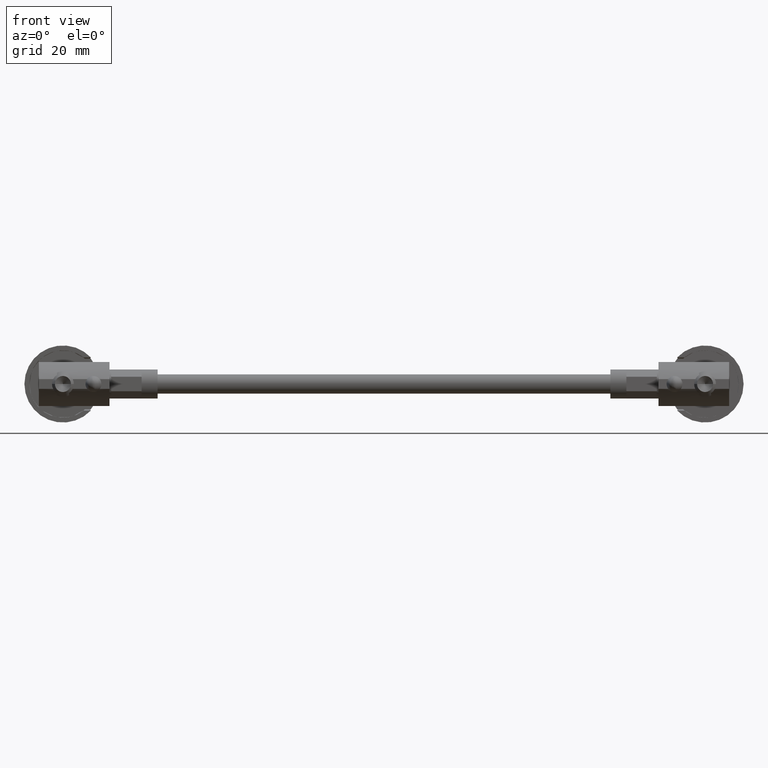
[diagram: clean part render]
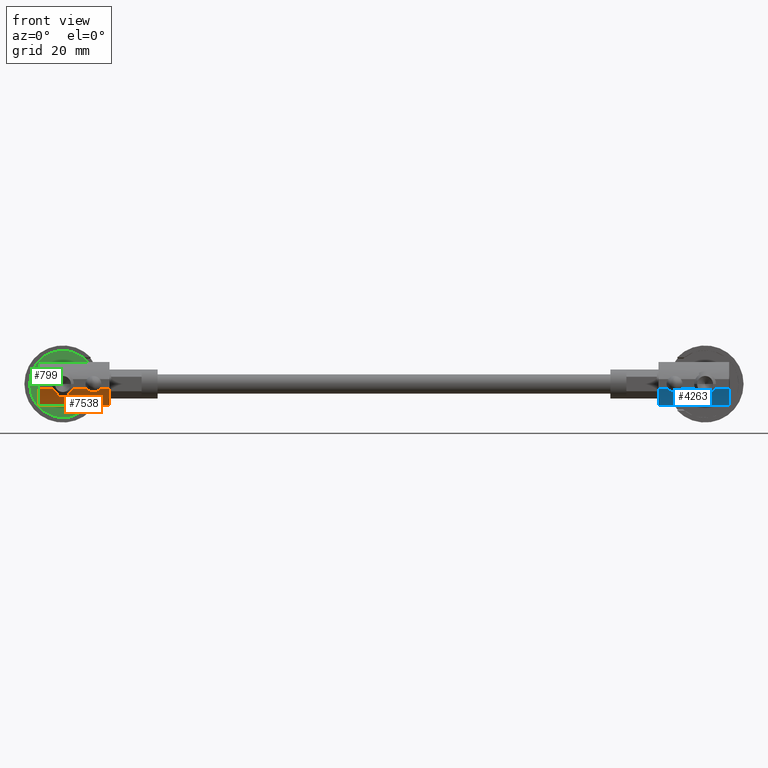
[diagram: same view with three faces highlighted in distinct colors, each labeled with its STEP entity id]
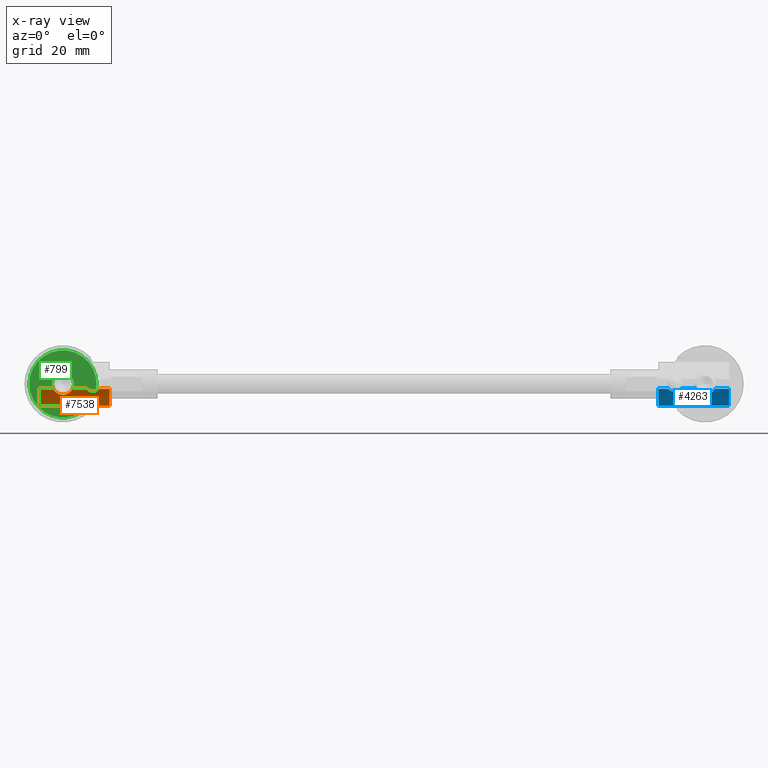
[diagram: x-ray of the same camera — body ghosted, the three highlighted faces saturated]
A machine part, front view with three faces highlighted in distinct colors.
The next image is the same camera in x-ray (body ghosted, the three faces saturated) — at least one of them is partly hidden behind the body in this view.
Their STEP definitions:

[orange] entity #7538 — the highlighted cylindrical surface (partial cylindrical patch) has radius 15 mm, axis along (1, 0, 0).
#20 = CARTESIAN_POINT ( 'NONE',  ( 10.31507470767070000, 6.395863166327655100, 2.334512633789148000 ) ) ;
#29 = CARTESIAN_POINT ( 'NONE',  ( -1.607021485560720800, 5.846392627918894500, 3.000552075843592600 ) ) ;
#82 = CARTESIAN_POINT ( 'NONE',  ( -1.316813023630920600, 5.723978642615317200, 3.138763176109192100 ) ) ;
#98 = CARTESIAN_POINT ( 'NONE',  ( 7.979895530079649500, 6.658593893730958300, 1.986763792833466300 ) ) ;
#108 = CARTESIAN_POINT ( 'NONE',  ( 11.24550390611286600, 6.800000000000000700, 1.789753087368402200 ) ) ;
#118 = CARTESIAN_POINT ( 'NONE',  ( 14.50000000000000000, -5.443699999999999800, -6.875800000000000800 ) ) ;
#195 = DIRECTION ( 'NONE',  ( 0.0000000000000000000, 0.0000000000000000000, -1.000000000000000000 ) ) ;
#290 = ORIENTED_EDGE ( 'NONE', *, *, #1976, .F. ) ;
#311 = DIRECTION ( 'NONE',  ( 1.000000000000000000, 0.0000000000000000000, 0.0000000000000000000 ) ) ;
#379 = AXIS2_PLACEMENT_3D ( 'NONE', #2748, #311, #911 ) ;
#529 = CARTESIAN_POINT ( 'NONE',  ( 2.010954284642405600, 6.064311396275236600, 2.745970588052841800 ) ) ;
#542 = VERTEX_POINT ( 'NONE', #2135 ) ;
#558 = CARTESIAN_POINT ( 'NONE',  ( 3.051220319344246900, 6.999999999999999100, 1.500018187496669800 ) ) ;
#616 = LINE ( 'NONE', #8045, #5617 ) ;
#623 = VERTEX_POINT ( 'NONE', #2326 ) ;
#684 = CARTESIAN_POINT ( 'NONE',  ( -2.362206040744368400, 6.297498275329335400, 2.463607501554073500 ) ) ;
#738 = CARTESIAN_POINT ( 'NONE',  ( 11.33694187479972000, 6.863115769539110300, 1.700575796580983300 ) ) ;
#846 = ORIENTED_EDGE ( 'NONE', *, *, #1033, .T. ) ;
#911 = DIRECTION ( 'NONE',  ( 0.0000000000000000000, 0.0000000000000000000, -1.000000000000000000 ) ) ;
#1013 = CYLINDRICAL_SURFACE ( 'NONE', #5288, 15.00000000000000000 ) ;
#1032 = CARTESIAN_POINT ( 'NONE',  ( 14.50000000000000000, 6.999999999999998200, 1.500018187496670700 ) ) ;
#1033 = EDGE_CURVE ( 'NONE', #3902, #4304, #4318, .T. ) ;
#1105 = CARTESIAN_POINT ( 'NONE',  ( 2.134438245254902400, 6.143306821718653100, 2.650896903671186200 ) ) ;
#1128 = CIRCLE ( 'NONE', #7317, 15.00000000000000000 ) ;
#1144 = DIRECTION ( 'NONE',  ( -1.000000000000000000, -0.0000000000000000000, -0.0000000000000000000 ) ) ;
#1158 = CARTESIAN_POINT ( 'NONE',  ( 1.751295241845146800, 5.917892201179617100, 2.918433926143174000 ) ) ;
#1196 = CARTESIAN_POINT ( 'NONE',  ( -3.051220319344246900, 6.999999999999999100, 1.500018187496669800 ) ) ;
#1236 = EDGE_CURVE ( 'NONE', #4304, #2826, #616, .T. ) ;
#1273 = CARTESIAN_POINT ( 'NONE',  ( -2.920397547576924200, 6.820882467153701600, 1.766127693885753300 ) ) ;
#1292 = CARTESIAN_POINT ( 'NONE',  ( 14.50000000000000000, 6.999999999999998200, 1.500018187496670700 ) ) ;
#1298 = CARTESIAN_POINT ( 'NONE',  ( -1.164973858814094100, 5.669884420373997500, 3.198559969211224100 ) ) ;
#1325 = CARTESIAN_POINT ( 'NONE',  ( 11.48996116474148700, 6.999999999999999100, 1.500018187496662000 ) ) ;
#1339 = CARTESIAN_POINT ( 'NONE',  ( 8.684758747591201800, 6.395931791068936600, 2.334422127100954200 ) ) ;
#1420 = CARTESIAN_POINT ( 'NONE',  ( 7.581050162485785100, 6.930338883221342200, 1.603511603835697100 ) ) ;
#1685 = B_SPLINE_CURVE_WITH_KNOTS ( 'NONE', 3,
 ( #6694, #6168, #7321, #3631, #4211, #1105, #529, #1158, #6776, #1788, #2402, #5586, #8082, #3150, #5662, #5020 ),
 .UNSPECIFIED., .F., .F.,
 ( 4, 2, 2, 2, 2, 2, 2, 4 ),
 ( 1.167721476617542300E-018, 0.001021559378302820500, 0.001532339067454229700, 0.002043118756605639300, 0.002553898445757048200, 0.003064678134908456700, 0.003575457824059866100, 0.004086237513211274200 ),
 .UNSPECIFIED. ) ;
#1730 = VERTEX_POINT ( 'NONE', #1196 ) ;
#1779 = CARTESIAN_POINT ( 'NONE',  ( 11.24550390611286600, 6.800000000000000700, 1.789753087368402200 ) ) ;
#1788 = CARTESIAN_POINT ( 'NONE',  ( 1.324111415067347900, 5.726728191862686200, 3.135701256862803100 ) ) ;
#1799 = VERTEX_POINT ( 'NONE', #4396 ) ;
#1816 = CARTESIAN_POINT ( 'NONE',  ( 11.24550390611286600, 6.800000000000000700, 1.789753087368402200 ) ) ;
#1864 = EDGE_CURVE ( 'NONE', #7687, #5393, #6182, .T. ) ;
#1912 = CARTESIAN_POINT ( 'NONE',  ( 10.75569273155184300, 6.535832561236101200, 2.152003218424707300 ) ) ;
#1976 = EDGE_CURVE ( 'NONE', #623, #7516, #3679, .T. ) ;
#1991 = CARTESIAN_POINT ( 'NONE',  ( 8.243631629963685400, 6.536064880933757600, 2.151701751305651100 ) ) ;
#2068 = CARTESIAN_POINT ( 'NONE',  ( 7.663348190086028700, 6.862915549994177400, 1.700858690011747500 ) ) ;
#2135 = CARTESIAN_POINT ( 'NONE',  ( -7.499999999999998200, 6.999999999999999100, 1.500018187496669800 ) ) ;
#2144 = ORIENTED_EDGE ( 'NONE', *, *, #7664, .F. ) ;
#2195 = VECTOR ( 'NONE', #3810, 1000.000000000000000 ) ;
#2308 = VERTEX_POINT ( 'NONE', #6753 ) ;
#2326 = CARTESIAN_POINT ( 'NONE',  ( 14.50000000000000000, 0.7049551724137919100, 6.806087281027759900 ) ) ;
#2397 = ORIENTED_EDGE ( 'NONE', *, *, #6418, .T. ) ;
#2402 = CARTESIAN_POINT ( 'NONE',  ( 1.169375551033407600, 5.671374201658086800, 3.196916602915210500 ) ) ;
#2436 = CARTESIAN_POINT ( 'NONE',  ( 11.13934008048986100, 6.726719593100758000, 1.893292158551295400 ) ) ;
#2444 = DIRECTION ( 'NONE',  ( 1.000000000000000000, 0.0000000000000000000, 0.0000000000000000000 ) ) ;
#2544 = CARTESIAN_POINT ( 'NONE',  ( -0.1741699072580615600, 5.483693758806353500, 3.400000000000001200 ) ) ;
#2575 = CARTESIAN_POINT ( 'NONE',  ( 11.41850533779835400, 6.929902835229791300, 1.604159427161251200 ) ) ;
#2649 = CARTESIAN_POINT ( 'NONE',  ( 7.754496093887132300, 6.799999999999998000, 1.789753087368400400 ) ) ;
#2748 = CARTESIAN_POINT ( 'NONE',  ( 14.50000000000000000, -5.443699999999999800, -6.875800000000000800 ) ) ;
#2826 = VERTEX_POINT ( 'NONE', #558 ) ;
#3035 = ORIENTED_EDGE ( 'NONE', *, *, #6848, .T. ) ;
#3150 = CARTESIAN_POINT ( 'NONE',  ( 0.3490359650921224200, 5.496551252033402300, 3.386372228750627900 ) ) ;
#3176 = CARTESIAN_POINT ( 'NONE',  ( 10.61512680406582000, 6.483149617983648300, 2.221198019764642600 ) ) ;
#3319 = DIRECTION ( 'NONE',  ( -1.000000000000000000, -0.0000000000000000000, -0.0000000000000000000 ) ) ;
#3631 = CARTESIAN_POINT ( 'NONE',  ( 2.467313702026287200, 6.389121484092967800, 2.343959336496202800 ) ) ;
#3679 = LINE ( 'NONE', #7158, #3869 ) ;
#3681 = CARTESIAN_POINT ( 'NONE',  ( 9.332729651075858600, 6.304573663101223200, 2.450403189786275200 ) ) ;
#3733 = CARTESIAN_POINT ( 'NONE',  ( -0.6799570239546040000, 5.543932167809434700, 3.335623040077529700 ) ) ;
#3740 = LINE ( 'NONE', #1292, #2195 ) ;
#3745 = ORIENTED_EDGE ( 'NONE', *, *, #1236, .T. ) ;
#3750 = CARTESIAN_POINT ( 'NONE',  ( 8.844496666770894000, 6.361612123995626300, 2.378169649339177700 ) ) ;
#3781 = CARTESIAN_POINT ( 'NONE',  ( 11.01825843812406600, 6.657655451861185900, 1.988038195952421600 ) ) ;
#3793 = CARTESIAN_POINT ( 'NONE',  ( -0.8455580180871210500, 5.579460762151626300, 3.297420447320796600 ) ) ;
#3810 = DIRECTION ( 'NONE',  ( -1.000000000000000000, -0.0000000000000000000, -0.0000000000000000000 ) ) ;
#3869 = VECTOR ( 'NONE', #3319, 1000.000000000000000 ) ;
#3895 = CARTESIAN_POINT ( 'NONE',  ( 7.754496093887132300, 6.799999999999998000, 1.789753087368400400 ) ) ;
#3902 = VERTEX_POINT ( 'NONE', #7955 ) ;
#3933 = FACE_OUTER_BOUND ( 'NONE', #6563, .T. ) ;
#4126 = CARTESIAN_POINT ( 'NONE',  ( 7.510038835258534100, 7.000000000000000900, 1.500018187496667800 ) ) ;
#4127 = B_SPLINE_CURVE_WITH_KNOTS ( 'NONE', 3,
 ( #1816, #2436, #3781, #1912, #3176, #20, #4977, #7544, #5609, #3681, #4378, #3750, #1339, #5691, #1991, #98, #5104, #2649 ),
 .UNSPECIFIED., .F., .F.,
 ( 4, 2, 2, 2, 2, 2, 2, 2, 4 ),
 ( 0.0004273609904412113100, 0.0009235474031409035100, 0.001419733815840595700, 0.001915920228540287800, 0.002412106641239979800, 0.002908293053939671900, 0.003404479466639364100, 0.003900665879339056200, 0.004396852292038748800 ),
 .UNSPECIFIED. ) ;
#4191 = ORIENTED_EDGE ( 'NONE', *, *, #6008, .T. ) ;
#4211 = CARTESIAN_POINT ( 'NONE',  ( 2.362363255943760600, 6.305632628623433400, 2.449963441291950900 ) ) ;
#4262 = ORIENTED_EDGE ( 'NONE', *, *, #1864, .T. ) ;
#4304 = VERTEX_POINT ( 'NONE', #4126 ) ;
#4308 = DIRECTION ( 'NONE',  ( 0.0000000000000000000, 0.0000000000000000000, -1.000000000000000000 ) ) ;
#4318 = B_SPLINE_CURVE_WITH_KNOTS ( 'NONE', 3,
 ( #3895, #2068, #1420, #5778 ),
 .UNSPECIFIED., .F., .F.,
 ( 4, 4 ),
 ( 0.004396852292038748800, 0.004821512991183025400 ),
 .UNSPECIFIED. ) ;
#4360 = CARTESIAN_POINT ( 'NONE',  ( 0.0000000000000000000, 5.483693758806351700, 3.399999999999999900 ) ) ;
#4378 = CARTESIAN_POINT ( 'NONE',  ( 9.168291755623329200, 6.316159117350493600, 2.435862695561803000 ) ) ;
#4396 = CARTESIAN_POINT ( 'NONE',  ( 14.50000000000000000, 6.999999999999999100, 1.500018187496669800 ) ) ;
#4439 = CARTESIAN_POINT ( 'NONE',  ( -1.746322401378547900, 5.915313732620152400, 2.921422963475985400 ) ) ;
#4532 = DIRECTION ( 'NONE',  ( 1.000000000000000000, 0.0000000000000000000, 0.0000000000000000000 ) ) ;
#4658 = ORIENTED_EDGE ( 'NONE', *, *, #6949, .T. ) ;
#4887 = DIRECTION ( 'NONE',  ( -1.000000000000000000, -0.0000000000000000000, -0.0000000000000000000 ) ) ;
#4977 = CARTESIAN_POINT ( 'NONE',  ( 10.15558926315721200, 6.361659857075290200, 2.378108390980962800 ) ) ;
#5005 = CARTESIAN_POINT ( 'NONE',  ( -2.136737156247428400, 6.134799714670633000, 2.663037846039189500 ) ) ;
#5013 = ORIENTED_EDGE ( 'NONE', *, *, #7935, .T. ) ;
#5020 = CARTESIAN_POINT ( 'NONE',  ( 0.0000000000000000000, 5.483693758806351700, 3.399999999999999900 ) ) ;
#5065 = CARTESIAN_POINT ( 'NONE',  ( -2.755886603249406700, 6.641801724989414300, 2.013571039390748200 ) ) ;
#5104 = CARTESIAN_POINT ( 'NONE',  ( 7.860996063164486200, 6.726487567327176000, 1.893619991516537300 ) ) ;
#5269 = EDGE_CURVE ( 'NONE', #1730, #542, #7282, .T. ) ;
#5288 = AXIS2_PLACEMENT_3D ( 'NONE', #118, #4532, #195 ) ;
#5393 = VERTEX_POINT ( 'NONE', #1779 ) ;
#5539 = CARTESIAN_POINT ( 'NONE',  ( -7.499999999999998200, -5.443699999999999800, -6.875800000000000800 ) ) ;
#5586 = CARTESIAN_POINT ( 'NONE',  ( 0.8514621006432554500, 5.580896223254452300, 3.295865172684979700 ) ) ;
#5609 = CARTESIAN_POINT ( 'NONE',  ( 9.666809983564206700, 6.304552196189781000, 2.450430231718470500 ) ) ;
#5617 = VECTOR ( 'NONE', #4887, 1000.000000000000000 ) ;
#5621 = CARTESIAN_POINT ( 'NONE',  ( -0.3448736001029518700, 5.496234628222634200, 3.386707076183780100 ) ) ;
#5662 = CARTESIAN_POINT ( 'NONE',  ( 0.1745052210684714100, 5.483693758806353500, 3.400000000000001200 ) ) ;
#5691 = CARTESIAN_POINT ( 'NONE',  ( 8.385803861589817400, 6.482858758670655400, 2.221577026077710600 ) ) ;
#5778 = CARTESIAN_POINT ( 'NONE',  ( 7.510038835258534100, 7.000000000000000900, 1.500018187496667800 ) ) ;
#5932 = CARTESIAN_POINT ( 'NONE',  ( 11.48996116474148700, 6.999999999999999100, 1.500018187496662000 ) ) ;
#6008 = EDGE_CURVE ( 'NONE', #1799, #7687, #3740, .T. ) ;
#6168 = CARTESIAN_POINT ( 'NONE',  ( 2.920227549515222300, 6.820649712313018800, 1.766473490719710200 ) ) ;
#6182 = B_SPLINE_CURVE_WITH_KNOTS ( 'NONE', 3,
 ( #1325, #2575, #738, #108 ),
 .UNSPECIFIED., .F., .F.,
 ( 4, 4 ),
 ( 2.335442953235084600E-018, 0.0004273609904412113100 ),
 .UNSPECIFIED. ) ;
#6286 = CARTESIAN_POINT ( 'NONE',  ( -3.051220319344246900, 6.999999999999999100, 1.500018187496669800 ) ) ;
#6418 = EDGE_CURVE ( 'NONE', #542, #7516, #1128, .T. ) ;
#6563 = EDGE_LOOP ( 'NONE', ( #290, #2144, #4191, #4262, #4658, #846, #3745, #3035, #5013, #7342, #2397 ) ) ;
#6694 = CARTESIAN_POINT ( 'NONE',  ( 3.051220319344246900, 6.999999999999999100, 1.500018187496669800 ) ) ;
#6753 = CARTESIAN_POINT ( 'NONE',  ( 0.0000000000000000000, 5.483693758806351700, 3.399999999999999900 ) ) ;
#6776 = CARTESIAN_POINT ( 'NONE',  ( 1.614340810552521000, 5.849826029771662700, 2.996630968135256100 ) ) ;
#6848 = EDGE_CURVE ( 'NONE', #2826, #2308, #1685, .T. ) ;
#6850 = CARTESIAN_POINT ( 'NONE',  ( -7.499999999999998200, 0.7049551724137928000, 6.806087281027761700 ) ) ;
#6949 = EDGE_CURVE ( 'NONE', #5393, #3902, #4127, .T. ) ;
#7158 = CARTESIAN_POINT ( 'NONE',  ( 14.50000000000000000, 0.7049551724137930200, 6.806087281027761700 ) ) ;
#7259 = CIRCLE ( 'NONE', #379, 15.00000000000000000 ) ;
#7282 = LINE ( 'NONE', #1032, #7987 ) ;
#7317 = AXIS2_PLACEMENT_3D ( 'NONE', #5539, #2444, #4308 ) ;
#7321 = CARTESIAN_POINT ( 'NONE',  ( 2.758060344169862800, 6.644330433029988800, 2.010032895087823200 ) ) ;
#7342 = ORIENTED_EDGE ( 'NONE', *, *, #5269, .T. ) ;
#7379 = B_SPLINE_CURVE_WITH_KNOTS ( 'NONE', 3,
 ( #4360, #2544, #5621, #3733, #3793, #1298, #82, #29, #4439, #5005, #684, #5065, #1273, #6286 ),
 .UNSPECIFIED., .F., .F.,
 ( 4, 2, 2, 2, 2, 2, 4 ),
 ( 0.004086237513211274200, 0.004596035733253615900, 0.005105833953295957500, 0.005615632173338299200, 0.006125430393380641700, 0.007145026833465326800, 0.008164623273550011800 ),
 .UNSPECIFIED. ) ;
#7516 = VERTEX_POINT ( 'NONE', #6850 ) ;
#7538 = ADVANCED_FACE ( 'NONE', ( #3933 ), #1013, .T. ) ;
#7544 = CARTESIAN_POINT ( 'NONE',  ( 9.833117444805605300, 6.316321429444535300, 2.435657342581658600 ) ) ;
#7664 = EDGE_CURVE ( 'NONE', #1799, #623, #7259, .T. ) ;
#7687 = VERTEX_POINT ( 'NONE', #5932 ) ;
#7935 = EDGE_CURVE ( 'NONE', #2308, #1730, #7379, .T. ) ;
#7955 = CARTESIAN_POINT ( 'NONE',  ( 7.754496093887132300, 6.799999999999998000, 1.789753087368400400 ) ) ;
#7987 = VECTOR ( 'NONE', #1144, 1000.000000000000000 ) ;
#8045 = CARTESIAN_POINT ( 'NONE',  ( 14.50000000000000000, 6.999999999999998200, 1.500018187496670700 ) ) ;
#8082 = CARTESIAN_POINT ( 'NONE',  ( 0.6876272359636798100, 5.545309666911665900, 3.334143332393229500 ) ) ;

[blue] entity #4263 — the highlighted cylindrical surface (partial cylindrical patch) has radius 15 mm, axis along (-1, 0, 0).
#15 = CARTESIAN_POINT ( 'NONE',  ( 7.981741561875784500, 6.657655451861165500, -1.988038195952303500 ) ) ;
#22 = DIRECTION ( 'NONE',  ( 1.000000000000000000, 0.0000000000000000000, 0.0000000000000000000 ) ) ;
#36 = CARTESIAN_POINT ( 'NONE',  ( 10.61419613841030300, 6.482858758670595000, -2.221577026077642600 ) ) ;
#39 = EDGE_CURVE ( 'NONE', #8052, #6148, #2094, .T. ) ;
#89 = CARTESIAN_POINT ( 'NONE',  ( 11.13900393683566600, 6.726487567327162700, -1.893619991516401800 ) ) ;
#155 = EDGE_CURVE ( 'NONE', #2815, #4497, #5777, .T. ) ;
#179 = EDGE_CURVE ( 'NONE', #3059, #7963, #7800, .T. ) ;
#206 = DIRECTION ( 'NONE',  ( 0.0000000000000000000, 0.0000000000000000000, -1.000000000000000000 ) ) ;
#591 = CARTESIAN_POINT ( 'NONE',  ( 10.31524125240889600, 6.395931791068859300, -2.334422127100910200 ) ) ;
#614 = CARTESIAN_POINT ( 'NONE',  ( 8.384873195934057200, 6.483149617983587900, -2.221198019764574200 ) ) ;
#670 = CARTESIAN_POINT ( 'NONE',  ( 14.50000000000000000, 6.999999999999963600, -1.500018187496564800 ) ) ;
#756 = EDGE_CURVE ( 'NONE', #4497, #3456, #4764, .T. ) ;
#816 = EDGE_CURVE ( 'NONE', #1399, #1342, #3299, .T. ) ;
#873 = CARTESIAN_POINT ( 'NONE',  ( 11.24550390611302800, 6.799999999999998900, -1.789753087368243900 ) ) ;
#912 = CARTESIAN_POINT ( 'NONE',  ( -1.322385126009099100, 5.726068702545310500, -3.136436932042862200 ) ) ;
#995 = CARTESIAN_POINT ( 'NONE',  ( 3.051220319344285500, 7.000000000000000000, -1.500018187496589400 ) ) ;
#1030 = CARTESIAN_POINT ( 'NONE',  ( -2.361747757776193600, 6.305156363088985700, -2.450564383951142800 ) ) ;
#1130 = CARTESIAN_POINT ( 'NONE',  ( 14.50000000000000000, 7.000000000000000000, -1.500018187496670000 ) ) ;
#1342 = VERTEX_POINT ( 'NONE', #670 ) ;
#1399 = VERTEX_POINT ( 'NONE', #3914 ) ;
#1555 = EDGE_CURVE ( 'NONE', #2777, #2815, #7717, .T. ) ;
#1601 = DIRECTION ( 'NONE',  ( 1.000000000000000000, 0.0000000000000000000, 0.0000000000000000000 ) ) ;
#1635 = LINE ( 'NONE', #2921, #7774 ) ;
#1641 = CARTESIAN_POINT ( 'NONE',  ( -2.920133508614255500, 6.820520955110008100, -1.766664781405574300 ) ) ;
#1723 = CARTESIAN_POINT ( 'NONE',  ( 7.510038835258517200, 6.999999999999955600, -1.500018187496651600 ) ) ;
#1756 = ORIENTED_EDGE ( 'NONE', *, *, #2018, .F. ) ;
#1775 = CARTESIAN_POINT ( 'NONE',  ( 4.162715753765229800E-016, 5.483693758806227300, -3.399999999999999900 ) ) ;
#2018 = EDGE_CURVE ( 'NONE', #3059, #1399, #5055, .T. ) ;
#2094 = B_SPLINE_CURVE_WITH_KNOTS ( 'NONE', 3,
 ( #7191, #2941, #4115, #6627 ),
 .UNSPECIFIED., .F., .F.,
 ( 4, 4 ),
 ( 0.004396852292039006400, 0.004821512991183110400 ),
 .UNSPECIFIED. ) ;
#2148 = CARTESIAN_POINT ( 'NONE',  ( 11.02010446992050200, 6.658593893730931700, -1.986763792833344800 ) ) ;
#2241 = CARTESIAN_POINT ( 'NONE',  ( 14.50000000000000000, 6.999999999999926300, -1.500018187496620300 ) ) ;
#2255 = CARTESIAN_POINT ( 'NONE',  ( -0.6852513233344800200, 5.544847154999795100, -3.334640618405860100 ) ) ;
#2332 = VECTOR ( 'NONE', #5226, 1000.000000000000000 ) ;
#2362 = CARTESIAN_POINT ( 'NONE',  ( 1.166058897774382400, 5.670281299937545100, -3.198120717092838300 ) ) ;
#2441 = ORIENTED_EDGE ( 'NONE', *, *, #1555, .T. ) ;
#2446 = CARTESIAN_POINT ( 'NONE',  ( 2.137188902133242000, 6.135217317133829300, -2.662511356567832000 ) ) ;
#2453 = CARTESIAN_POINT ( 'NONE',  ( 9.333190016435775500, 6.304552196189680700, -2.450430231718449600 ) ) ;
#2460 = DIRECTION ( 'NONE',  ( 0.0000000000000000000, 0.0000000000000000000, -1.000000000000000000 ) ) ;
#2482 = DIRECTION ( 'NONE',  ( 1.000000000000000000, 0.0000000000000000000, 0.0000000000000000000 ) ) ;
#2570 = CARTESIAN_POINT ( 'NONE',  ( -7.499999999999998200, -5.443700000000060200, 6.875800000000070100 ) ) ;
#2623 = DIRECTION ( 'NONE',  ( 1.000000000000000000, 0.0000000000000000000, 0.0000000000000000000 ) ) ;
#2757 = ORIENTED_EDGE ( 'NONE', *, *, #816, .F. ) ;
#2777 = VERTEX_POINT ( 'NONE', #6786 ) ;
#2802 = CARTESIAN_POINT ( 'NONE',  ( -2.757828526219271200, 6.644076914382198500, -2.010383163261838300 ) ) ;
#2815 = VERTEX_POINT ( 'NONE', #1775 ) ;
#2921 = CARTESIAN_POINT ( 'NONE',  ( 14.50000000000000000, 6.999999999999926300, -1.500018187496620300 ) ) ;
#2941 = CARTESIAN_POINT ( 'NONE',  ( 11.33665180991408400, 6.862915549994154300, -1.700858690011618900 ) ) ;
#2967 = CARTESIAN_POINT ( 'NONE',  ( 2.757775895762653500, 6.643923121396136700, -2.010624257570764700 ) ) ;
#3000 = DIRECTION ( 'NONE',  ( 1.000000000000000000, 0.0000000000000000000, 0.0000000000000000000 ) ) ;
#3059 = VERTEX_POINT ( 'NONE', #3289 ) ;
#3087 = CARTESIAN_POINT ( 'NONE',  ( 7.754496093886972500, 6.799999999999998900, -1.789753087368244600 ) ) ;
#3094 = AXIS2_PLACEMENT_3D ( 'NONE', #7435, #22, #2460 ) ;
#3197 = VERTEX_POINT ( 'NONE', #5410 ) ;
#3289 = CARTESIAN_POINT ( 'NONE',  ( -7.499999999999998200, 0.7049551520261730900, -6.806087290189927900 ) ) ;
#3299 = CIRCLE ( 'NONE', #3094, 15.00000000000000000 ) ;
#3338 = ORIENTED_EDGE ( 'NONE', *, *, #4050, .T. ) ;
#3433 = CARTESIAN_POINT ( 'NONE',  ( -2.009970135479617300, 6.063703531404410500, -2.746697881997379300 ) ) ;
#3456 = VERTEX_POINT ( 'NONE', #7986 ) ;
#3593 = ORIENTED_EDGE ( 'NONE', *, *, #8061, .T. ) ;
#3606 = B_SPLINE_CURVE_WITH_KNOTS ( 'NONE', 3,
 ( #3087, #4320, #15, #4937, #614, #4344, #6213, #5015, #2453, #6877, #3701, #6366, #591, #36, #5154, #2148, #89, #4445 ),
 .UNSPECIFIED., .F., .F.,
 ( 4, 2, 2, 2, 2, 2, 2, 2, 4 ),
 ( 0.0004273609904409949500, 0.0009235474031407464100, 0.001419733815840497900, 0.001915920228540249200, 0.002412106641240001000, 0.002908293053939752100, 0.003404479466639503300, 0.003900665879339255300, 0.004396852292039006400 ),
 .UNSPECIFIED. ) ;
#3692 = CARTESIAN_POINT ( 'NONE',  ( 2.368055832518511900, 6.302154509627834900, -2.457691878665134500 ) ) ;
#3701 = CARTESIAN_POINT ( 'NONE',  ( 9.831708244376706300, 6.316159117350395900, -2.435862695561779900 ) ) ;
#3914 = CARTESIAN_POINT ( 'NONE',  ( 14.50000000000000000, 0.7049551520261730900, -6.806087290189927900 ) ) ;
#3925 = LINE ( 'NONE', #2241, #6202 ) ;
#3970 = VECTOR ( 'NONE', #2482, 1000.000000000000000 ) ;
#3993 = CARTESIAN_POINT ( 'NONE',  ( 14.50000000000000000, 0.7049551316385901400, -6.806087299352181000 ) ) ;
#4050 = EDGE_CURVE ( 'NONE', #3197, #8052, #3606, .T. ) ;
#4115 = CARTESIAN_POINT ( 'NONE',  ( 11.41894983751428700, 6.930338883221293300, -1.603511603835610100 ) ) ;
#4228 = CARTESIAN_POINT ( 'NONE',  ( 2.920230945849747100, 6.820654362444169100, -1.766466582160211900 ) ) ;
#4236 = CARTESIAN_POINT ( 'NONE',  ( 7.663058125200175000, 6.863115769539084500, -1.700575796580866500 ) ) ;
#4263 = ADVANCED_FACE ( 'NONE', ( #5139 ), #4940, .T. ) ;
#4320 = CARTESIAN_POINT ( 'NONE',  ( 7.860659919509979300, 6.726719593100745500, -1.893292158551160800 ) ) ;
#4344 = CARTESIAN_POINT ( 'NONE',  ( 8.684925292329204200, 6.395863166327576000, -2.334512633789103100 ) ) ;
#4445 = CARTESIAN_POINT ( 'NONE',  ( 11.24550390611302800, 6.799999999999998900, -1.789753087368243900 ) ) ;
#4497 = VERTEX_POINT ( 'NONE', #995 ) ;
#4680 = AXIS2_PLACEMENT_3D ( 'NONE', #7062, #2623, #206 ) ;
#4686 = CARTESIAN_POINT ( 'NONE',  ( -1.612941088814362300, 5.849160431501987400, -2.997392215607908500 ) ) ;
#4764 = LINE ( 'NONE', #1130, #3970 ) ;
#4774 = CARTESIAN_POINT ( 'NONE',  ( -3.051220319344268200, 6.999999999999960000, -1.500018187496625200 ) ) ;
#4828 = CARTESIAN_POINT ( 'NONE',  ( 7.754496093886972500, 6.799999999999998900, -1.789753087368244600 ) ) ;
#4847 = CARTESIAN_POINT ( 'NONE',  ( 4.162715753765229800E-016, 5.483693758806227300, -3.399999999999999900 ) ) ;
#4884 = CARTESIAN_POINT ( 'NONE',  ( 7.581494662201585300, 6.929902835229729200, -1.604159427161177000 ) ) ;
#4885 = EDGE_LOOP ( 'NONE', ( #3593, #2441, #4947, #5754, #5460, #3338, #6673, #5996, #2757, #1756, #6208 ) ) ;
#4927 = CARTESIAN_POINT ( 'NONE',  ( 1.320564128564439200, 5.725367342865680200, -3.137220159859290800 ) ) ;
#4937 = CARTESIAN_POINT ( 'NONE',  ( 8.244307268448020300, 6.535832561236053300, -2.152003218424626500 ) ) ;
#4940 = CYLINDRICAL_SURFACE ( 'NONE', #4680, 15.00000000000000000 ) ;
#4947 = ORIENTED_EDGE ( 'NONE', *, *, #155, .T. ) ;
#5015 = CARTESIAN_POINT ( 'NONE',  ( 9.166882555194355600, 6.316321429444438500, -2.435657342581635500 ) ) ;
#5030 = DIRECTION ( 'NONE',  ( 0.0000000000000000000, 0.0000000000000000000, -1.000000000000000000 ) ) ;
#5055 = LINE ( 'NONE', #3993, #2332 ) ;
#5119 = AXIS2_PLACEMENT_3D ( 'NONE', #2570, #6944, #5030 ) ;
#5139 = FACE_OUTER_BOUND ( 'NONE', #4885, .T. ) ;
#5154 = CARTESIAN_POINT ( 'NONE',  ( 10.75636837003645000, 6.536064880933703400, -2.151701751305562700 ) ) ;
#5224 = B_SPLINE_CURVE_WITH_KNOTS ( 'NONE', 3,
 ( #1723, #4884, #4236, #4828 ),
 .UNSPECIFIED., .F., .F.,
 ( 4, 4 ),
 ( 1.084202172485504400E-018, 0.0004273609904409949500 ),
 .UNSPECIFIED. ) ;
#5226 = DIRECTION ( 'NONE',  ( 1.000000000000000000, 0.0000000000000000000, 0.0000000000000000000 ) ) ;
#5327 = EDGE_CURVE ( 'NONE', #6148, #1342, #1635, .T. ) ;
#5394 = CARTESIAN_POINT ( 'NONE',  ( 4.162715753765229800E-016, 5.483693758806227300, -3.399999999999999900 ) ) ;
#5410 = CARTESIAN_POINT ( 'NONE',  ( 7.754496093886972500, 6.799999999999998900, -1.789753087368244600 ) ) ;
#5460 = ORIENTED_EDGE ( 'NONE', *, *, #7343, .T. ) ;
#5754 = ORIENTED_EDGE ( 'NONE', *, *, #756, .T. ) ;
#5777 = B_SPLINE_CURVE_WITH_KNOTS ( 'NONE', 3,
 ( #4847, #6787, #8064, #2362, #4927, #6205, #6096, #2446, #3692, #2967, #4228, #6735 ),
 .UNSPECIFIED., .F., .F.,
 ( 4, 2, 2, 2, 2, 4 ),
 ( 0.004089171060291088000, 0.005110072914662786700, 0.005620523841848635600, 0.006130974769034484500, 0.007151876623406183200, 0.008172778477777881800 ),
 .UNSPECIFIED. ) ;
#5930 = CARTESIAN_POINT ( 'NONE',  ( 11.48996116474149600, 6.999999999999962700, -1.500018187496632300 ) ) ;
#5934 = CARTESIAN_POINT ( 'NONE',  ( -2.133580825743153200, 6.142734336266912000, -2.651594073622861800 ) ) ;
#5987 = CARTESIAN_POINT ( 'NONE',  ( -1.750042096485594900, 5.917238934992661300, -2.919191987694052000 ) ) ;
#5996 = ORIENTED_EDGE ( 'NONE', *, *, #5327, .T. ) ;
#6013 = CARTESIAN_POINT ( 'NONE',  ( -1.167477628941789000, 5.670738948188759600, -3.197617017337260700 ) ) ;
#6041 = CARTESIAN_POINT ( 'NONE',  ( -2.466803346906530200, 6.388698607851607900, -2.344503339404659000 ) ) ;
#6096 = CARTESIAN_POINT ( 'NONE',  ( 1.748684295084150400, 5.916560554030369600, -2.919972434448584200 ) ) ;
#6148 = VERTEX_POINT ( 'NONE', #5930 ) ;
#6202 = VECTOR ( 'NONE', #1601, 1000.000000000000000 ) ;
#6205 = CARTESIAN_POINT ( 'NONE',  ( 1.611752953857613900, 5.848587716751159100, -2.998048092477831900 ) ) ;
#6208 = ORIENTED_EDGE ( 'NONE', *, *, #179, .T. ) ;
#6213 = CARTESIAN_POINT ( 'NONE',  ( 8.844410736842709400, 6.361659857075204100, -2.378108390980928200 ) ) ;
#6366 = CARTESIAN_POINT ( 'NONE',  ( 10.15550333322917900, 6.361612123995541000, -2.378169649339142700 ) ) ;
#6627 = CARTESIAN_POINT ( 'NONE',  ( 11.48996116474149600, 6.999999999999962700, -1.500018187496632300 ) ) ;
#6629 = CARTESIAN_POINT ( 'NONE',  ( -0.3463064121765587800, 5.496280384665223700, -3.386660493604173500 ) ) ;
#6673 = ORIENTED_EDGE ( 'NONE', *, *, #39, .T. ) ;
#6735 = CARTESIAN_POINT ( 'NONE',  ( 3.051220319344285500, 7.000000000000000000, -1.500018187496589400 ) ) ;
#6786 = CARTESIAN_POINT ( 'NONE',  ( -3.051220319344268200, 6.999999999999960000, -1.500018187496625200 ) ) ;
#6787 = CARTESIAN_POINT ( 'NONE',  ( 0.3431907277945791500, 5.483693758806224700, -3.400000000000000400 ) ) ;
#6877 = CARTESIAN_POINT ( 'NONE',  ( 9.667270348924162700, 6.304573663101124700, -2.450403189786254400 ) ) ;
#6944 = DIRECTION ( 'NONE',  ( 1.000000000000000000, 0.0000000000000000000, 0.0000000000000000000 ) ) ;
#6994 = CARTESIAN_POINT ( 'NONE',  ( -7.499999999999998200, 6.999999999999963600, -1.500018187496564800 ) ) ;
#7062 = CARTESIAN_POINT ( 'NONE',  ( 14.50000000000000000, -5.443700000000060200, 6.875800000000070100 ) ) ;
#7191 = CARTESIAN_POINT ( 'NONE',  ( 11.24550390611302800, 6.799999999999998900, -1.789753087368243900 ) ) ;
#7252 = CARTESIAN_POINT ( 'NONE',  ( -0.1718291511383212800, 5.483693758806222900, -3.399999999999999900 ) ) ;
#7343 = EDGE_CURVE ( 'NONE', #3456, #3197, #5224, .T. ) ;
#7435 = CARTESIAN_POINT ( 'NONE',  ( 14.50000000000000000, -5.443700000000060200, 6.875800000000070100 ) ) ;
#7717 = B_SPLINE_CURVE_WITH_KNOTS ( 'NONE', 3,
 ( #4774, #1641, #2802, #6041, #1030, #5934, #3433, #5987, #4686, #912, #6013, #7807, #2255, #6629, #7252, #5394 ),
 .UNSPECIFIED., .F., .F.,
 ( 4, 2, 2, 2, 2, 2, 2, 4 ),
 ( 2.478439686507813200E-017, 0.001022292765072792400, 0.001533439147609175500, 0.002044585530145558800, 0.002555731912681941200, 0.003066878295218323600, 0.003578024677754706100, 0.004089171060291088000 ),
 .UNSPECIFIED. ) ;
#7774 = VECTOR ( 'NONE', #3000, 1000.000000000000000 ) ;
#7800 = CIRCLE ( 'NONE', #5119, 15.00000000000000000 ) ;
#7807 = CARTESIAN_POINT ( 'NONE',  ( -0.8492512828975468100, 5.580363367798484300, -3.296442152099936100 ) ) ;
#7963 = VERTEX_POINT ( 'NONE', #6994 ) ;
#7986 = CARTESIAN_POINT ( 'NONE',  ( 7.510038835258517200, 6.999999999999955600, -1.500018187496651600 ) ) ;
#8052 = VERTEX_POINT ( 'NONE', #873 ) ;
#8061 = EDGE_CURVE ( 'NONE', #7963, #2777, #3925, .T. ) ;
#8064 = CARTESIAN_POINT ( 'NONE',  ( 0.6894325382330781500, 5.535085272841092400, -3.345946902139117300 ) ) ;

[green] entity #799 — the highlighted planar face has unit normal (0, 1, 0).
#471 = DIRECTION ( 'NONE',  ( 0.0000000000000000000, 0.0000000000000000000, 1.000000000000000000 ) ) ;
#486 = EDGE_LOOP ( 'NONE', ( #7810, #851 ) ) ;
#799 = ADVANCED_FACE ( 'NONE', ( #6050, #6621 ), #4945, .F. ) ;
#851 = ORIENTED_EDGE ( 'NONE', *, *, #7673, .F. ) ;
#1063 = CARTESIAN_POINT ( 'NONE',  ( 0.0000000000000000000, 1.285879139104720800E-015, -10.50000000000000000 ) ) ;
#1145 = VERTEX_POINT ( 'NONE', #2044 ) ;
#1587 = DIRECTION ( 'NONE',  ( 0.0000000000000000000, 0.0000000000000000000, 1.000000000000000000 ) ) ;
#1871 = CIRCLE ( 'NONE', #4180, 3.399999999999999900 ) ;
#2044 = CARTESIAN_POINT ( 'NONE',  ( 0.0000000000000000000, 0.0000000000000000000, 10.50000000000000000 ) ) ;
#2116 = ORIENTED_EDGE ( 'NONE', *, *, #6289, .F. ) ;
#2632 = EDGE_CURVE ( 'NONE', #3959, #3514, #1871, .T. ) ;
#2981 = AXIS2_PLACEMENT_3D ( 'NONE', #6807, #7490, #7406 ) ;
#3432 = DIRECTION ( 'NONE',  ( 0.0000000000000000000, 0.0000000000000000000, 1.000000000000000000 ) ) ;
#3514 = VERTEX_POINT ( 'NONE', #5399 ) ;
#3587 = CARTESIAN_POINT ( 'NONE',  ( 0.0000000000000000000, 0.0000000000000000000, 0.0000000000000000000 ) ) ;
#3941 = EDGE_CURVE ( 'NONE', #1145, #5353, #8093, .T. ) ;
#3959 = VERTEX_POINT ( 'NONE', #6797 ) ;
#4103 = EDGE_LOOP ( 'NONE', ( #6976, #2116 ) ) ;
#4174 = DIRECTION ( 'NONE',  ( 1.000000000000000000, -0.0000000000000000000, -0.0000000000000000000 ) ) ;
#4180 = AXIS2_PLACEMENT_3D ( 'NONE', #6047, #4745, #1587 ) ;
#4269 = AXIS2_PLACEMENT_3D ( 'NONE', #5465, #4174, #471 ) ;
#4745 = DIRECTION ( 'NONE',  ( -1.000000000000000000, 0.0000000000000000000, 0.0000000000000000000 ) ) ;
#4832 = CIRCLE ( 'NONE', #7152, 3.399999999999999900 ) ;
#4945 = PLANE ( 'NONE',  #2981 ) ;
#5353 = VERTEX_POINT ( 'NONE', #1063 ) ;
#5399 = CARTESIAN_POINT ( 'NONE',  ( 0.0000000000000000000, 4.163799117101000600E-016, -3.399999999999999900 ) ) ;
#5465 = CARTESIAN_POINT ( 'NONE',  ( 0.0000000000000000000, 0.0000000000000000000, 0.0000000000000000000 ) ) ;
#6047 = CARTESIAN_POINT ( 'NONE',  ( 0.0000000000000000000, 0.0000000000000000000, 0.0000000000000000000 ) ) ;
#6050 = FACE_BOUND ( 'NONE', #4103, .T. ) ;
#6289 = EDGE_CURVE ( 'NONE', #3514, #3959, #4832, .T. ) ;
#6621 = FACE_OUTER_BOUND ( 'NONE', #486, .T. ) ;
#6797 = CARTESIAN_POINT ( 'NONE',  ( 0.0000000000000000000, 0.0000000000000000000, 3.399999999999999900 ) ) ;
#6807 = CARTESIAN_POINT ( 'NONE',  ( 0.0000000000000000000, 0.0000000000000000000, 0.0000000000000000000 ) ) ;
#6976 = ORIENTED_EDGE ( 'NONE', *, *, #2632, .F. ) ;
#7152 = AXIS2_PLACEMENT_3D ( 'NONE', #3587, #7247, #7356 ) ;
#7168 = DIRECTION ( 'NONE',  ( 1.000000000000000000, -0.0000000000000000000, -0.0000000000000000000 ) ) ;
#7193 = CARTESIAN_POINT ( 'NONE',  ( 0.0000000000000000000, 0.0000000000000000000, 0.0000000000000000000 ) ) ;
#7247 = DIRECTION ( 'NONE',  ( -1.000000000000000000, 0.0000000000000000000, 0.0000000000000000000 ) ) ;
#7356 = DIRECTION ( 'NONE',  ( 0.0000000000000000000, 0.0000000000000000000, 1.000000000000000000 ) ) ;
#7406 = DIRECTION ( 'NONE',  ( 0.0000000000000000000, 0.0000000000000000000, -1.000000000000000000 ) ) ;
#7490 = DIRECTION ( 'NONE',  ( 1.000000000000000000, 0.0000000000000000000, 0.0000000000000000000 ) ) ;
#7673 = EDGE_CURVE ( 'NONE', #5353, #1145, #7960, .T. ) ;
#7810 = ORIENTED_EDGE ( 'NONE', *, *, #3941, .F. ) ;
#7960 = CIRCLE ( 'NONE', #8079, 10.50000000000000000 ) ;
#8079 = AXIS2_PLACEMENT_3D ( 'NONE', #7193, #7168, #3432 ) ;
#8093 = CIRCLE ( 'NONE', #4269, 10.50000000000000000 ) ;